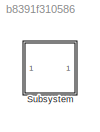
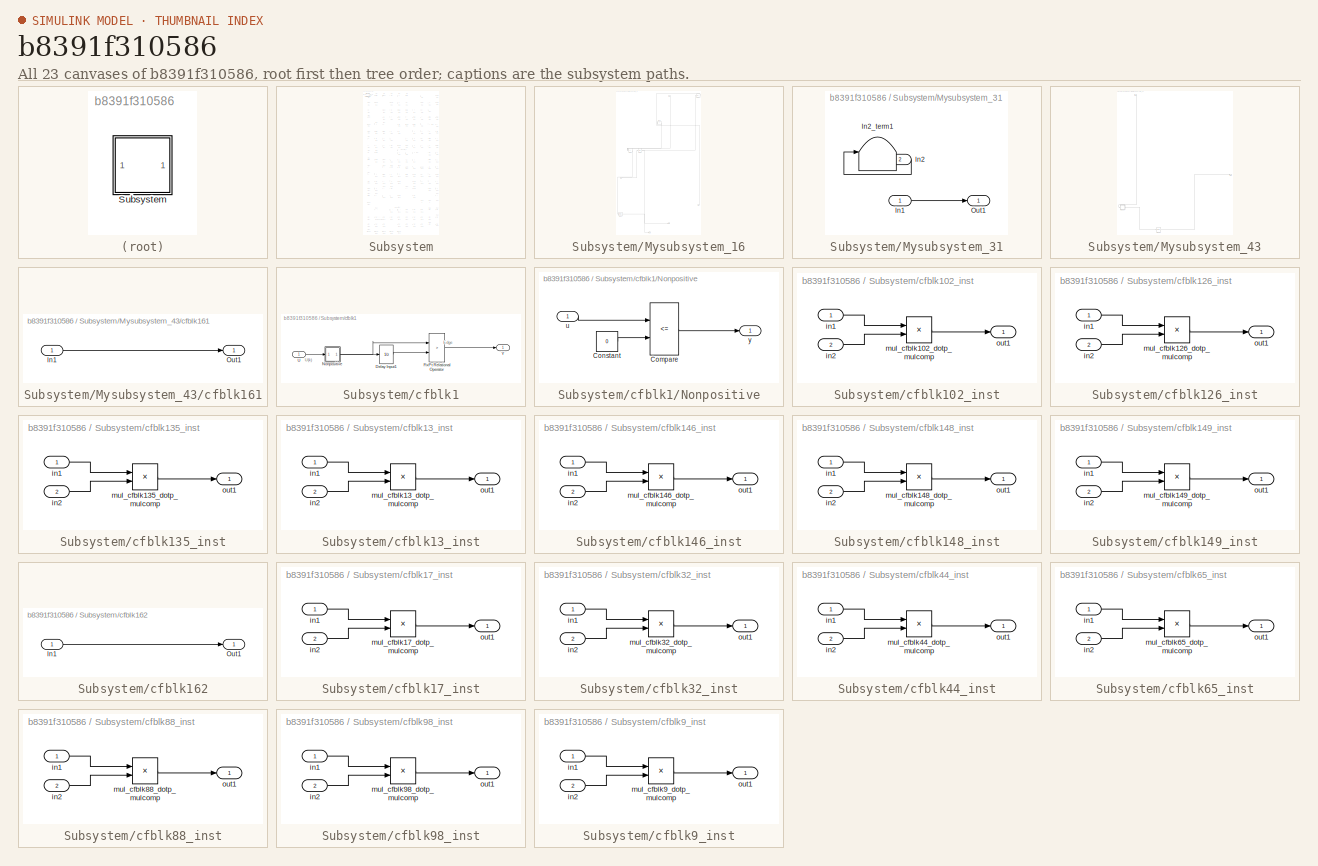
[diagram: thumbnail index - all 23 canvases of the model, root first then tree order]
MODEL slx_b8391f310586
KIND model
CONFIG AbsTol = auto
CONFIG EnableMultiTasking = off
CONFIG FixedStep = auto
CONFIG MaxStep = auto
CONFIG MinStep = auto
CONFIG RelTol = 1e-3
CONFIG SampleTimeConstraint = Unconstrained
CONFIG SolverName = VariableStepAuto
CONFIG StartTime = 0.0
CONFIG StopTime = 10.0
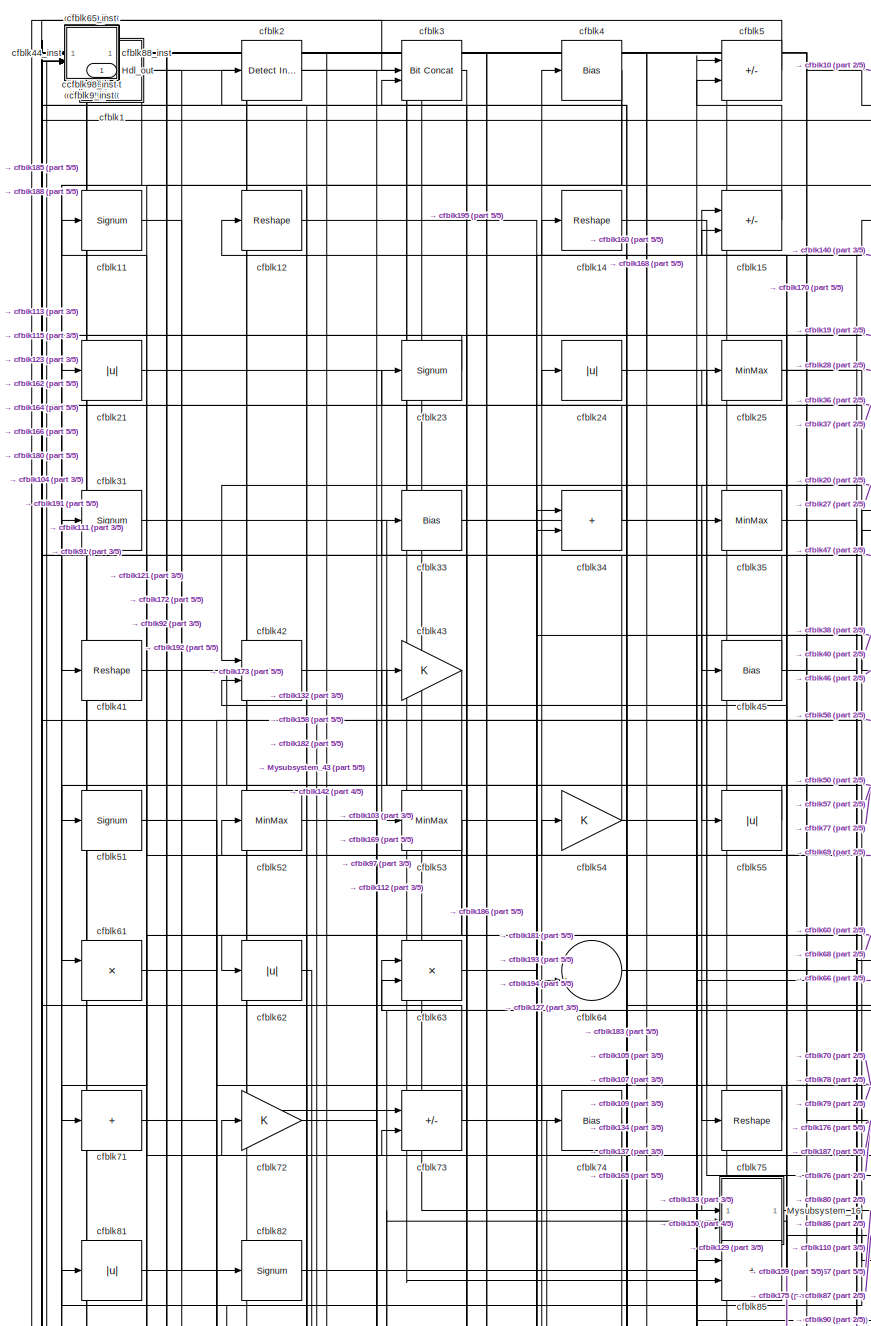
[diagram: Subsystem - part 1/5, top left region]
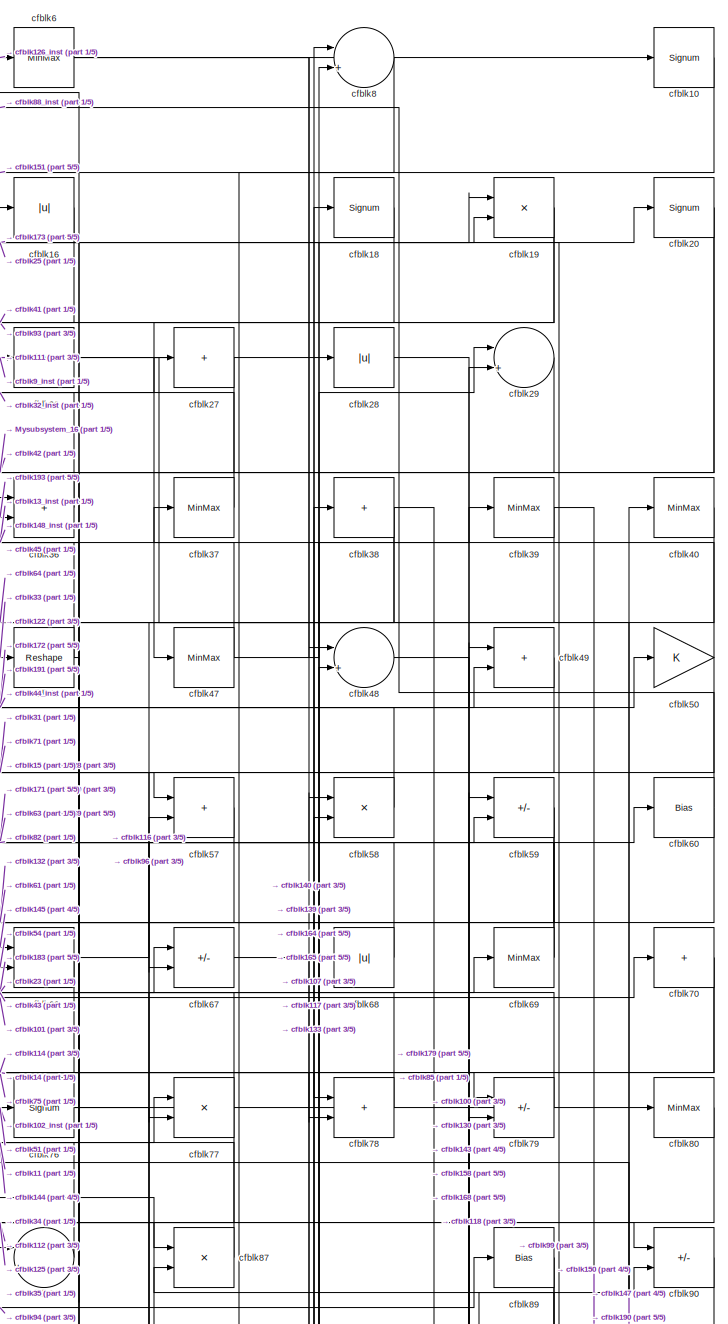
[diagram: Subsystem - part 2/5, top right region]
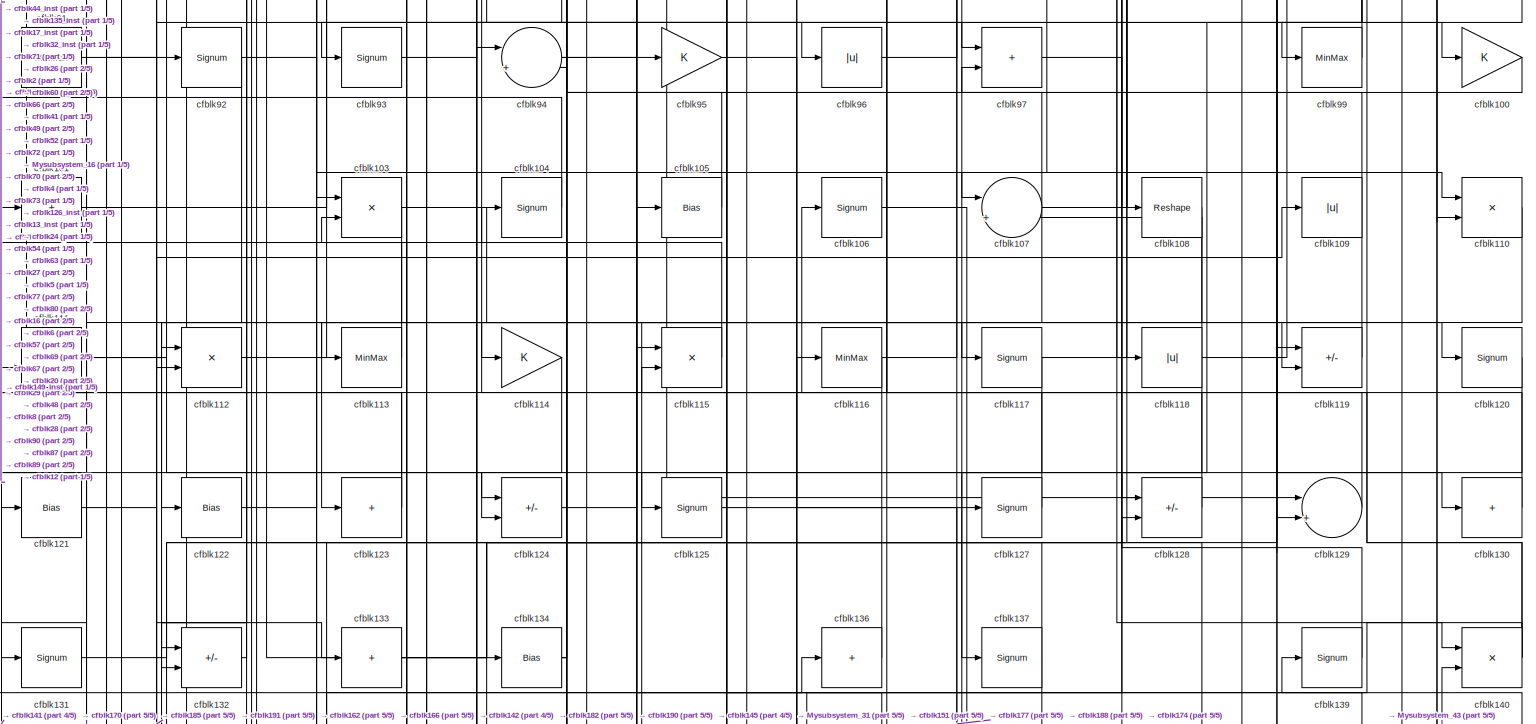
[diagram: Subsystem - part 3/5, full width, middle band]
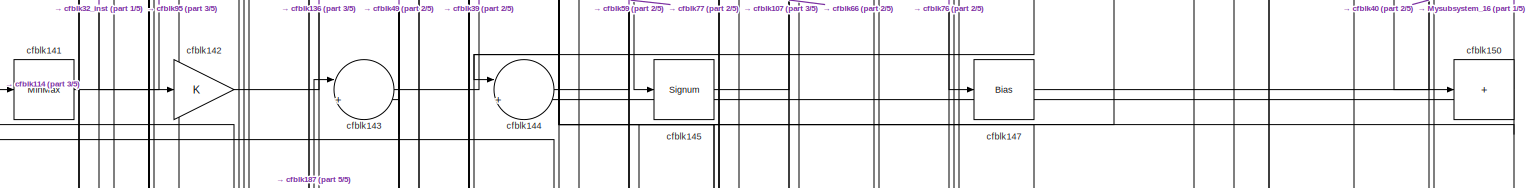
[diagram: Subsystem - part 4/5, full width, bottom band]
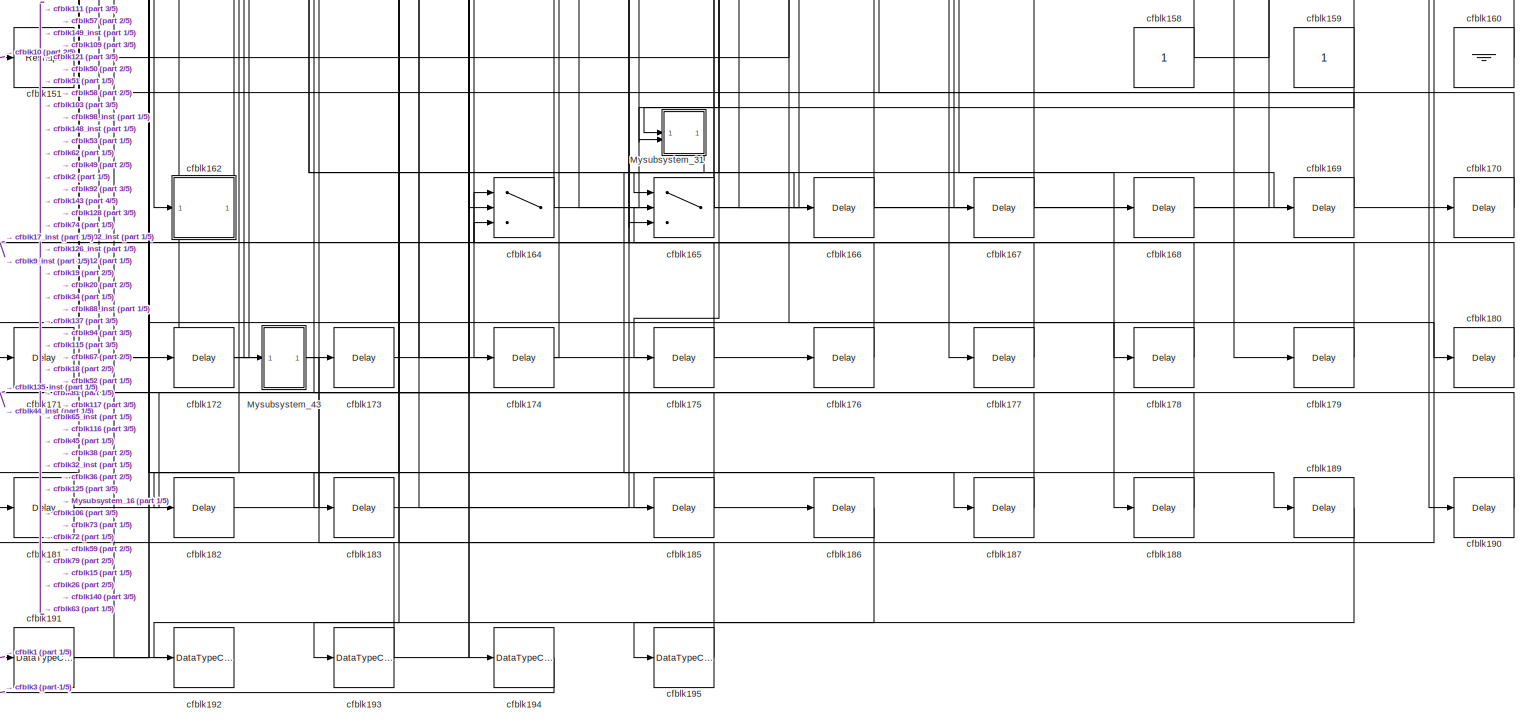
[diagram: Subsystem - part 5/5, full width, bottom band]
BLOCK [SubSystem] Subsystem
BLOCK [Outport] Subsystem/Hdl_out
  OutDataTypeStr = uint8
  SampleTime = 1
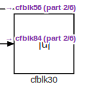
[diagram: Subsystem/Mysubsystem_16 - part 1/6, top right region]
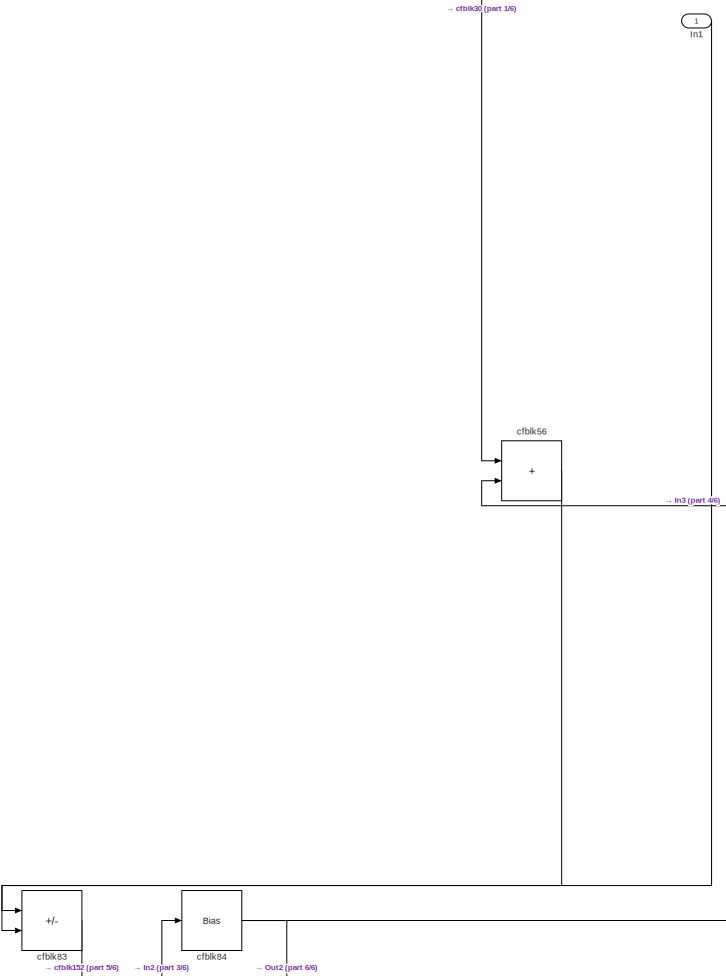
[diagram: Subsystem/Mysubsystem_16 - part 2/6, top center region]
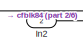
[diagram: Subsystem/Mysubsystem_16 - part 3/6, middle left region]
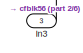
[diagram: Subsystem/Mysubsystem_16 - part 4/6, bottom right region]
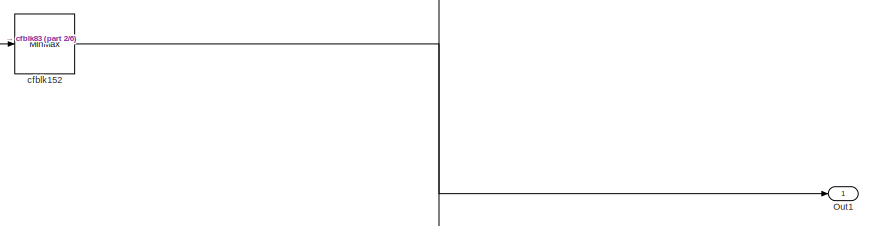
[diagram: Subsystem/Mysubsystem_16 - part 5/6, bottom left region]
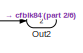
[diagram: Subsystem/Mysubsystem_16 - part 6/6, bottom center region]
BLOCK [SubSystem] Subsystem/Mysubsystem_16
BLOCK [Inport] Subsystem/Mysubsystem_16/In1
  OutDataTypeStr = uint8
  PortDimensions = 1
  SampleTime = 1
BLOCK [Inport] Subsystem/Mysubsystem_16/In2
  OutDataTypeStr = uint8
  Port = 2
  PortDimensions = 1
  SampleTime = 1
BLOCK [Inport] Subsystem/Mysubsystem_16/In3
  OutDataTypeStr = uint8
  Port = 3
  PortDimensions = 1
  SampleTime = 1
BLOCK [Outport] Subsystem/Mysubsystem_16/Out1
  SampleTime = 1
BLOCK [Outport] Subsystem/Mysubsystem_16/Out2
  Port = 2
  SampleTime = 1
BLOCK [MinMax] Subsystem/Mysubsystem_16/cfblk152
BLOCK [Abs] Subsystem/Mysubsystem_16/cfblk30
  SaturateOnIntegerOverflow = off
BLOCK [Sum] Subsystem/Mysubsystem_16/cfblk56
  IconShape = rectangular
BLOCK [Sum] Subsystem/Mysubsystem_16/cfblk83
  IconShape = rectangular
  Inputs = +-
BLOCK [Bias] Subsystem/Mysubsystem_16/cfblk84
  Bias = 0.0
  SaturateOnIntegerOverflow = off
BLOCK [SubSystem] Subsystem/Mysubsystem_31
BLOCK [Inport] Subsystem/Mysubsystem_31/In1
  OutDataTypeStr = uint8
  PortDimensions = 1
  SampleTime = 1
BLOCK [Inport] Subsystem/Mysubsystem_31/In2
  OutDataTypeStr = uint8
  Port = 2
  PortDimensions = 1
  SampleTime = 1
BLOCK [Terminator] Subsystem/Mysubsystem_31/In2_term1
BLOCK [Outport] Subsystem/Mysubsystem_31/Out1
  SampleTime = 1
BLOCK [SubSystem] Subsystem/Mysubsystem_43
BLOCK [Inport] Subsystem/Mysubsystem_43/In1
  OutDataTypeStr = uint8
  PortDimensions = 1
  SampleTime = 1
BLOCK [Outport] Subsystem/Mysubsystem_43/Out1
  SampleTime = 1
BLOCK [SubSystem] Subsystem/Mysubsystem_43/cfblk161
BLOCK [Inport] Subsystem/Mysubsystem_43/cfblk161/In1
  OutDataTypeStr = uint8
  PortDimensions = 1
  SampleTime = 1
BLOCK [Outport] Subsystem/Mysubsystem_43/cfblk161/Out1
  SampleTime = 1
BLOCK [Delay] Subsystem/Mysubsystem_43/cfblk184
  InputPortMap = u0
  SampleTime = 1
BLOCK [SubSystem] Subsystem/cfblk1
BLOCK [UnitDelay] Subsystem/cfblk1/Delay Input1
  Description = Store in Global RAM
  DisableCoverage = on
  HasFrameUpgradeWarning = on
  InitialCondition = vinit
  SampleTime = -1
BLOCK [RelationalOperator] Subsystem/cfblk1/FixPt Relational Operator
  InputSameDT = off
  Operator = >
  OutDataTypeStr = fixdt(0, 8)
  ZeroCross = off
BLOCK [SubSystem] Subsystem/cfblk1/Nonpositive
BLOCK [RelationalOperator] Subsystem/cfblk1/Nonpositive/Compare
  Operator = <=
  OutDataTypeStr = boolean
  ZeroCross = off
BLOCK [Constant] Subsystem/cfblk1/Nonpositive/Constant
  DisableCoverage = on
  OutDataTypeStr = Inherit: Inherit via back propagation
  PreserveConstantTs = on
  SampleTime = -1
  Value = 0
BLOCK [Inport] Subsystem/cfblk1/Nonpositive/u
  OutDataTypeStr = uint8
  SampleTime = 1
BLOCK [Outport] Subsystem/cfblk1/Nonpositive/y
  SampleTime = 1
BLOCK [Inport] Subsystem/cfblk1/U
  OutDataTypeStr = uint8
  SampleTime = 1
BLOCK [Outport] Subsystem/cfblk1/Y
  SampleTime = 1
BLOCK [Signum] Subsystem/cfblk10
BLOCK [Gain] Subsystem/cfblk100
  OutDataTypeStr = uint8
BLOCK [Sum] Subsystem/cfblk101
  IconShape = rectangular
  Inputs = +
  OutDataTypeStr = uint8
BLOCK [SubSystem] Subsystem/cfblk102_inst
BLOCK [Inport] Subsystem/cfblk102_inst/in1
  OutDataTypeStr = uint8
  SampleTime = 1
BLOCK [Inport] Subsystem/cfblk102_inst/in2
  OutDataTypeStr = uint8
  Port = 2
  SampleTime = 1
BLOCK [Product] Subsystem/cfblk102_inst/mul_cfblk102_dotp_mulcomp
  Inputs = **
  OutDataTypeStr = uint8
  SampleTime = 1
BLOCK [Outport] Subsystem/cfblk102_inst/out1
  OutDataTypeStr = uint8
  SampleTime = 1
BLOCK [Product] Subsystem/cfblk103
  Inputs = */
  OutDataTypeStr = uint8
  RndMeth = Zero
  SaturateOnIntegerOverflow = on
BLOCK [Signum] Subsystem/cfblk104
BLOCK [Bias] Subsystem/cfblk105
  Bias = 0.0
  SaturateOnIntegerOverflow = off
BLOCK [Signum] Subsystem/cfblk106
BLOCK [Sum] Subsystem/cfblk107
  Inputs = |++
  OutDataTypeStr = uint8
BLOCK [Reshape] Subsystem/cfblk108
BLOCK [Abs] Subsystem/cfblk109
  OutDataTypeStr = uint8
  SaturateOnIntegerOverflow = off
BLOCK [Signum] Subsystem/cfblk11
BLOCK [Product] Subsystem/cfblk110
  Inputs = */
  OutDataTypeStr = uint8
  RndMeth = Zero
  SaturateOnIntegerOverflow = on
BLOCK [Sum] Subsystem/cfblk111
  IconShape = rectangular
  OutDataTypeStr = uint8
BLOCK [Product] Subsystem/cfblk112
  Inputs = */
  OutDataTypeStr = uint8
  RndMeth = Zero
  SaturateOnIntegerOverflow = on
BLOCK [MinMax] Subsystem/cfblk113
  OutDataTypeStr = uint8
BLOCK [Gain] Subsystem/cfblk114
  OutDataTypeStr = uint8
BLOCK [Product] Subsystem/cfblk115
  Inputs = */
  OutDataTypeStr = uint8
  RndMeth = Zero
  SaturateOnIntegerOverflow = on
BLOCK [MinMax] Subsystem/cfblk116
  OutDataTypeStr = uint8
BLOCK [Signum] Subsystem/cfblk117
BLOCK [Abs] Subsystem/cfblk118
  OutDataTypeStr = uint8
  SaturateOnIntegerOverflow = off
BLOCK [Sum] Subsystem/cfblk119
  IconShape = rectangular
  Inputs = +-
  OutDataTypeStr = uint8
BLOCK [Reshape] Subsystem/cfblk12
BLOCK [Signum] Subsystem/cfblk120
BLOCK [Bias] Subsystem/cfblk121
  Bias = 0.0
  SaturateOnIntegerOverflow = off
BLOCK [Bias] Subsystem/cfblk122
  Bias = 0.0
  SaturateOnIntegerOverflow = off
BLOCK [Sum] Subsystem/cfblk123
  IconShape = rectangular
  Inputs = +
  OutDataTypeStr = uint8
BLOCK [Sum] Subsystem/cfblk124
  IconShape = rectangular
  Inputs = +-
  OutDataTypeStr = uint8
BLOCK [Signum] Subsystem/cfblk125
BLOCK [SubSystem] Subsystem/cfblk126_inst
BLOCK [Inport] Subsystem/cfblk126_inst/in1
  OutDataTypeStr = uint8
  SampleTime = 1
BLOCK [Inport] Subsystem/cfblk126_inst/in2
  OutDataTypeStr = uint8
  Port = 2
  SampleTime = 1
BLOCK [Product] Subsystem/cfblk126_inst/mul_cfblk126_dotp_mulcomp
  Inputs = **
  OutDataTypeStr = uint8
  SampleTime = 1
BLOCK [Outport] Subsystem/cfblk126_inst/out1
  OutDataTypeStr = uint8
  SampleTime = 1
BLOCK [Signum] Subsystem/cfblk127
BLOCK [Sum] Subsystem/cfblk128
  IconShape = rectangular
  Inputs = +-
  OutDataTypeStr = uint8
BLOCK [Sum] Subsystem/cfblk129
  Inputs = |++
  OutDataTypeStr = uint8
BLOCK [Sum] Subsystem/cfblk130
  IconShape = rectangular
  Inputs = +
  OutDataTypeStr = uint8
BLOCK [Signum] Subsystem/cfblk131
BLOCK [Sum] Subsystem/cfblk132
  IconShape = rectangular
  Inputs = +-
  OutDataTypeStr = uint8
BLOCK [Sum] Subsystem/cfblk133
  IconShape = rectangular
  Inputs = +
  OutDataTypeStr = uint8
BLOCK [Bias] Subsystem/cfblk134
  Bias = 0.0
  SaturateOnIntegerOverflow = off
BLOCK [SubSystem] Subsystem/cfblk135_inst
BLOCK [Inport] Subsystem/cfblk135_inst/in1
  OutDataTypeStr = uint8
  SampleTime = 1
BLOCK [Inport] Subsystem/cfblk135_inst/in2
  OutDataTypeStr = uint8
  Port = 2
  SampleTime = 1
BLOCK [Product] Subsystem/cfblk135_inst/mul_cfblk135_dotp_mulcomp
  Inputs = **
  OutDataTypeStr = uint8
  SampleTime = 1
BLOCK [Outport] Subsystem/cfblk135_inst/out1
  OutDataTypeStr = uint8
  SampleTime = 1
BLOCK [Sum] Subsystem/cfblk136
  IconShape = rectangular
  Inputs = +
  OutDataTypeStr = uint8
BLOCK [Signum] Subsystem/cfblk137
BLOCK [Signum] Subsystem/cfblk139
BLOCK [SubSystem] Subsystem/cfblk13_inst
BLOCK [Inport] Subsystem/cfblk13_inst/in1
  OutDataTypeStr = uint8
  SampleTime = 1
BLOCK [Inport] Subsystem/cfblk13_inst/in2
  OutDataTypeStr = uint8
  Port = 2
  SampleTime = 1
BLOCK [Product] Subsystem/cfblk13_inst/mul_cfblk13_dotp_mulcomp
  Inputs = **
  OutDataTypeStr = uint8
  SampleTime = 1
BLOCK [Outport] Subsystem/cfblk13_inst/out1
  OutDataTypeStr = uint8
  SampleTime = 1
BLOCK [Reshape] Subsystem/cfblk14
BLOCK [Product] Subsystem/cfblk140
  Inputs = */
  OutDataTypeStr = uint8
  RndMeth = Zero
  SaturateOnIntegerOverflow = on
BLOCK [MinMax] Subsystem/cfblk141
  OutDataTypeStr = uint8
BLOCK [Gain] Subsystem/cfblk142
  OutDataTypeStr = uint8
BLOCK [Sum] Subsystem/cfblk143
  Inputs = |++
  OutDataTypeStr = uint8
BLOCK [Sum] Subsystem/cfblk144
  Inputs = |++
  OutDataTypeStr = uint8
BLOCK [Signum] Subsystem/cfblk145
BLOCK [SubSystem] Subsystem/cfblk146_inst
BLOCK [Inport] Subsystem/cfblk146_inst/in1
  OutDataTypeStr = uint8
  SampleTime = 1
BLOCK [Inport] Subsystem/cfblk146_inst/in2
  OutDataTypeStr = uint8
  Port = 2
  SampleTime = 1
BLOCK [Product] Subsystem/cfblk146_inst/mul_cfblk146_dotp_mulcomp
  Inputs = **
  OutDataTypeStr = uint8
  SampleTime = 1
BLOCK [Outport] Subsystem/cfblk146_inst/out1
  OutDataTypeStr = uint8
  SampleTime = 1
BLOCK [Bias] Subsystem/cfblk147
  Bias = 0.0
  SaturateOnIntegerOverflow = off
BLOCK [SubSystem] Subsystem/cfblk148_inst
BLOCK [Inport] Subsystem/cfblk148_inst/in1
  OutDataTypeStr = uint8
  SampleTime = 1
BLOCK [Inport] Subsystem/cfblk148_inst/in2
  OutDataTypeStr = uint8
  Port = 2
  SampleTime = 1
BLOCK [Product] Subsystem/cfblk148_inst/mul_cfblk148_dotp_mulcomp
  Inputs = **
  OutDataTypeStr = uint8
  SampleTime = 1
BLOCK [Outport] Subsystem/cfblk148_inst/out1
  OutDataTypeStr = uint8
  SampleTime = 1
BLOCK [SubSystem] Subsystem/cfblk149_inst
BLOCK [Inport] Subsystem/cfblk149_inst/in1
  OutDataTypeStr = uint8
  SampleTime = 1
BLOCK [Inport] Subsystem/cfblk149_inst/in2
  OutDataTypeStr = uint8
  Port = 2
  SampleTime = 1
BLOCK [Product] Subsystem/cfblk149_inst/mul_cfblk149_dotp_mulcomp
  Inputs = **
  OutDataTypeStr = uint8
  SampleTime = 1
BLOCK [Outport] Subsystem/cfblk149_inst/out1
  OutDataTypeStr = uint8
  SampleTime = 1
BLOCK [Sum] Subsystem/cfblk15
  IconShape = rectangular
  Inputs = +-
  OutDataTypeStr = uint8
BLOCK [Sum] Subsystem/cfblk150
  IconShape = rectangular
  Inputs = +
  OutDataTypeStr = uint8
BLOCK [Reshape] Subsystem/cfblk151
BLOCK [Constant] Subsystem/cfblk158
  OutDataTypeStr = uint8
  SampleTime = -1
BLOCK [Constant] Subsystem/cfblk159
  OutDataTypeStr = uint8
  SampleTime = -1
BLOCK [Abs] Subsystem/cfblk16
  OutDataTypeStr = uint8
  SaturateOnIntegerOverflow = off
BLOCK [Ground] Subsystem/cfblk160
BLOCK [SubSystem] Subsystem/cfblk162
BLOCK [Inport] Subsystem/cfblk162/In1
  OutDataTypeStr = uint8
  PortDimensions = 1
  SampleTime = 1
BLOCK [Outport] Subsystem/cfblk162/Out1
  SampleTime = 1
BLOCK [Switch] Subsystem/cfblk164
  InputSameDT = off
  OutDataTypeStr = uint8
  SaturateOnIntegerOverflow = off
BLOCK [Switch] Subsystem/cfblk165
  InputSameDT = off
  OutDataTypeStr = uint8
  SaturateOnIntegerOverflow = off
BLOCK [Delay] Subsystem/cfblk166
  InputPortMap = u0
  SampleTime = 1
BLOCK [Delay] Subsystem/cfblk167
  InputPortMap = u0
  SampleTime = 1
BLOCK [Delay] Subsystem/cfblk168
  InputPortMap = u0
  SampleTime = 1
BLOCK [Delay] Subsystem/cfblk169
  InputPortMap = u0
  SampleTime = 1
BLOCK [Delay] Subsystem/cfblk170
  InputPortMap = u0
  SampleTime = 1
BLOCK [Delay] Subsystem/cfblk171
  InputPortMap = u0
  SampleTime = 1
BLOCK [Delay] Subsystem/cfblk172
  InputPortMap = u0
  SampleTime = 1
BLOCK [Delay] Subsystem/cfblk173
  InputPortMap = u0
  SampleTime = 1
BLOCK [Delay] Subsystem/cfblk174
  InputPortMap = u0
  SampleTime = 1
BLOCK [Delay] Subsystem/cfblk175
  InputPortMap = u0
  SampleTime = 1
BLOCK [Delay] Subsystem/cfblk176
  InputPortMap = u0
  SampleTime = 1
BLOCK [Delay] Subsystem/cfblk177
  InputPortMap = u0
  SampleTime = 1
BLOCK [Delay] Subsystem/cfblk178
  InputPortMap = u0
  SampleTime = 1
BLOCK [Delay] Subsystem/cfblk179
  InputPortMap = u0
  SampleTime = 1
BLOCK [SubSystem] Subsystem/cfblk17_inst
BLOCK [Inport] Subsystem/cfblk17_inst/in1
  OutDataTypeStr = uint8
  SampleTime = 1
BLOCK [Inport] Subsystem/cfblk17_inst/in2
  OutDataTypeStr = uint8
  Port = 2
  SampleTime = 1
BLOCK [Product] Subsystem/cfblk17_inst/mul_cfblk17_dotp_mulcomp
  Inputs = **
  OutDataTypeStr = uint8
  SampleTime = 1
BLOCK [Outport] Subsystem/cfblk17_inst/out1
  OutDataTypeStr = uint8
  SampleTime = 1
BLOCK [Signum] Subsystem/cfblk18
BLOCK [Delay] Subsystem/cfblk180
  InputPortMap = u0
  SampleTime = 1
BLOCK [Delay] Subsystem/cfblk181
  InputPortMap = u0
  SampleTime = 1
BLOCK [Delay] Subsystem/cfblk182
  InputPortMap = u0
  SampleTime = 1
BLOCK [Delay] Subsystem/cfblk183
  InputPortMap = u0
  SampleTime = 1
BLOCK [Delay] Subsystem/cfblk185
  InputPortMap = u0
  SampleTime = 1
BLOCK [Delay] Subsystem/cfblk186
  InputPortMap = u0
  SampleTime = 1
BLOCK [Delay] Subsystem/cfblk187
  InputPortMap = u0
  SampleTime = 1
BLOCK [Delay] Subsystem/cfblk188
  InputPortMap = u0
  SampleTime = 1
BLOCK [Delay] Subsystem/cfblk189
  InputPortMap = u0
  SampleTime = 1
BLOCK [Product] Subsystem/cfblk19
  Inputs = */
  OutDataTypeStr = uint8
  RndMeth = Zero
  SaturateOnIntegerOverflow = on
BLOCK [Delay] Subsystem/cfblk190
  InputPortMap = u0
  SampleTime = 1
BLOCK [DataTypeConversion] Subsystem/cfblk191
  OutDataTypeStr = uint8
  RndMeth = Floor
  SaturateOnIntegerOverflow = off
BLOCK [DataTypeConversion] Subsystem/cfblk192
  OutDataTypeStr = uint8
  RndMeth = Floor
  SaturateOnIntegerOverflow = off
BLOCK [DataTypeConversion] Subsystem/cfblk193
  OutDataTypeStr = uint8
  RndMeth = Floor
  SaturateOnIntegerOverflow = off
BLOCK [DataTypeConversion] Subsystem/cfblk194
  OutDataTypeStr = uint8
  RndMeth = Floor
  SaturateOnIntegerOverflow = off
BLOCK [DataTypeConversion] Subsystem/cfblk195
  OutDataTypeStr = uint8
  RndMeth = Floor
  SaturateOnIntegerOverflow = off
BLOCK [Reference] Subsystem/cfblk2  REF=simulink/Logic and Bit
Operations/Detect
Increase
  LibrarySourceBlock = hdlsllib/Logic and Bit\nOperations/Detect\nIncrease
  SourceBlock = simulink/Logic and Bit\nOperations/Detect\nIncrease
  SourceType = Detect Increase
BLOCK [Signum] Subsystem/cfblk20
BLOCK [Abs] Subsystem/cfblk21
  OutDataTypeStr = uint8
  SaturateOnIntegerOverflow = off
BLOCK [Signum] Subsystem/cfblk23
BLOCK [Abs] Subsystem/cfblk24
  OutDataTypeStr = uint8
  SaturateOnIntegerOverflow = off
BLOCK [MinMax] Subsystem/cfblk25
  OutDataTypeStr = uint8
BLOCK [MinMax] Subsystem/cfblk26
  OutDataTypeStr = uint8
BLOCK [Sum] Subsystem/cfblk27
  IconShape = rectangular
  Inputs = +
  OutDataTypeStr = uint8
BLOCK [Abs] Subsystem/cfblk28
  OutDataTypeStr = uint8
  SaturateOnIntegerOverflow = off
BLOCK [Sum] Subsystem/cfblk29
  Inputs = |++
  OutDataTypeStr = uint8
BLOCK [Reference] Subsystem/cfblk3  REF=hdlsllib/Logic and Bit
Operations/Bit Concat
  SourceBlock = hdlsllib/Logic and Bit\nOperations/Bit Concat
  SourceType = Bit Concat
BLOCK [Signum] Subsystem/cfblk31
BLOCK [SubSystem] Subsystem/cfblk32_inst
BLOCK [Inport] Subsystem/cfblk32_inst/in1
  OutDataTypeStr = uint8
  SampleTime = 1
BLOCK [Inport] Subsystem/cfblk32_inst/in2
  OutDataTypeStr = uint8
  Port = 2
  SampleTime = 1
BLOCK [Product] Subsystem/cfblk32_inst/mul_cfblk32_dotp_mulcomp
  Inputs = **
  OutDataTypeStr = uint8
  SampleTime = 1
BLOCK [Outport] Subsystem/cfblk32_inst/out1
  OutDataTypeStr = uint8
  SampleTime = 1
BLOCK [Bias] Subsystem/cfblk33
  Bias = 0.0
  SaturateOnIntegerOverflow = off
BLOCK [Sum] Subsystem/cfblk34
  IconShape = rectangular
  OutDataTypeStr = uint8
BLOCK [MinMax] Subsystem/cfblk35
  OutDataTypeStr = uint8
BLOCK [Sum] Subsystem/cfblk36
  IconShape = rectangular
  OutDataTypeStr = uint8
BLOCK [MinMax] Subsystem/cfblk37
  OutDataTypeStr = uint8
BLOCK [Sum] Subsystem/cfblk38
  IconShape = rectangular
  Inputs = +
  OutDataTypeStr = uint8
BLOCK [MinMax] Subsystem/cfblk39
  OutDataTypeStr = uint8
BLOCK [Bias] Subsystem/cfblk4
  Bias = 0.0
  SaturateOnIntegerOverflow = off
BLOCK [MinMax] Subsystem/cfblk40
  OutDataTypeStr = uint8
BLOCK [Reshape] Subsystem/cfblk41
BLOCK [Product] Subsystem/cfblk42
  Inputs = */
  OutDataTypeStr = uint8
  RndMeth = Zero
  SaturateOnIntegerOverflow = on
BLOCK [Gain] Subsystem/cfblk43
  OutDataTypeStr = uint8
BLOCK [SubSystem] Subsystem/cfblk44_inst
BLOCK [Inport] Subsystem/cfblk44_inst/in1
  OutDataTypeStr = uint8
  SampleTime = 1
BLOCK [Inport] Subsystem/cfblk44_inst/in2
  OutDataTypeStr = uint8
  Port = 2
  SampleTime = 1
BLOCK [Product] Subsystem/cfblk44_inst/mul_cfblk44_dotp_mulcomp
  Inputs = **
  OutDataTypeStr = uint8
  SampleTime = 1
BLOCK [Outport] Subsystem/cfblk44_inst/out1
  OutDataTypeStr = uint8
  SampleTime = 1
BLOCK [Bias] Subsystem/cfblk45
  Bias = 0.0
  SaturateOnIntegerOverflow = off
BLOCK [Reshape] Subsystem/cfblk46
BLOCK [MinMax] Subsystem/cfblk47
  OutDataTypeStr = uint8
BLOCK [Sum] Subsystem/cfblk48
  Inputs = |++
  OutDataTypeStr = uint8
BLOCK [Sum] Subsystem/cfblk49
  IconShape = rectangular
  OutDataTypeStr = uint8
BLOCK [Sum] Subsystem/cfblk5
  IconShape = rectangular
  Inputs = +-
  OutDataTypeStr = uint8
BLOCK [Gain] Subsystem/cfblk50
  OutDataTypeStr = uint8
BLOCK [Signum] Subsystem/cfblk51
BLOCK [MinMax] Subsystem/cfblk52
  OutDataTypeStr = uint8
BLOCK [MinMax] Subsystem/cfblk53
  OutDataTypeStr = uint8
BLOCK [Gain] Subsystem/cfblk54
  OutDataTypeStr = uint8
BLOCK [Abs] Subsystem/cfblk55
  OutDataTypeStr = uint8
  SaturateOnIntegerOverflow = off
BLOCK [Sum] Subsystem/cfblk57
  IconShape = rectangular
  OutDataTypeStr = uint8
BLOCK [Product] Subsystem/cfblk58
  Inputs = */
  OutDataTypeStr = uint8
  RndMeth = Zero
  SaturateOnIntegerOverflow = on
BLOCK [Sum] Subsystem/cfblk59
  IconShape = rectangular
  Inputs = +-
  OutDataTypeStr = uint8
BLOCK [MinMax] Subsystem/cfblk6
  OutDataTypeStr = uint8
BLOCK [Bias] Subsystem/cfblk60
  Bias = 0.0
  SaturateOnIntegerOverflow = off
BLOCK [Product] Subsystem/cfblk61
  Inputs = */
  OutDataTypeStr = uint8
  RndMeth = Zero
  SaturateOnIntegerOverflow = on
BLOCK [Abs] Subsystem/cfblk62
  OutDataTypeStr = uint8
  SaturateOnIntegerOverflow = off
BLOCK [Product] Subsystem/cfblk63
  Inputs = */
  OutDataTypeStr = uint8
  RndMeth = Zero
  SaturateOnIntegerOverflow = on
BLOCK [Sum] Subsystem/cfblk64
  Inputs = |++
  OutDataTypeStr = uint8
BLOCK [SubSystem] Subsystem/cfblk65_inst
BLOCK [Inport] Subsystem/cfblk65_inst/in1
  OutDataTypeStr = uint8
  SampleTime = 1
BLOCK [Inport] Subsystem/cfblk65_inst/in2
  OutDataTypeStr = uint8
  Port = 2
  SampleTime = 1
BLOCK [Product] Subsystem/cfblk65_inst/mul_cfblk65_dotp_mulcomp
  Inputs = **
  OutDataTypeStr = uint8
  SampleTime = 1
BLOCK [Outport] Subsystem/cfblk65_inst/out1
  OutDataTypeStr = uint8
  SampleTime = 1
BLOCK [Sum] Subsystem/cfblk66
  IconShape = rectangular
  OutDataTypeStr = uint8
BLOCK [Sum] Subsystem/cfblk67
  IconShape = rectangular
  Inputs = +-
  OutDataTypeStr = uint8
BLOCK [Abs] Subsystem/cfblk68
  OutDataTypeStr = uint8
  SaturateOnIntegerOverflow = off
BLOCK [MinMax] Subsystem/cfblk69
  OutDataTypeStr = uint8
BLOCK [Sum] Subsystem/cfblk70
  IconShape = rectangular
  Inputs = +
  OutDataTypeStr = uint8
BLOCK [Sum] Subsystem/cfblk71
  IconShape = rectangular
  Inputs = +
  OutDataTypeStr = uint8
BLOCK [Gain] Subsystem/cfblk72
  OutDataTypeStr = uint8
BLOCK [Sum] Subsystem/cfblk73
  IconShape = rectangular
  Inputs = +-
  OutDataTypeStr = uint8
BLOCK [Bias] Subsystem/cfblk74
  Bias = 0.0
  SaturateOnIntegerOverflow = off
BLOCK [Reshape] Subsystem/cfblk75
BLOCK [Signum] Subsystem/cfblk76
BLOCK [Product] Subsystem/cfblk77
  Inputs = */
  OutDataTypeStr = uint8
  RndMeth = Zero
  SaturateOnIntegerOverflow = on
BLOCK [Sum] Subsystem/cfblk78
  IconShape = rectangular
  OutDataTypeStr = uint8
BLOCK [Sum] Subsystem/cfblk79
  IconShape = rectangular
  Inputs = +-
  OutDataTypeStr = uint8
BLOCK [Sum] Subsystem/cfblk8
  Inputs = |++
  OutDataTypeStr = uint8
BLOCK [MinMax] Subsystem/cfblk80
  OutDataTypeStr = uint8
BLOCK [Abs] Subsystem/cfblk81
  OutDataTypeStr = uint8
  SaturateOnIntegerOverflow = off
BLOCK [Signum] Subsystem/cfblk82
BLOCK [Sum] Subsystem/cfblk85
  IconShape = rectangular
  OutDataTypeStr = uint8
BLOCK [Sum] Subsystem/cfblk86
  Inputs = |++
  OutDataTypeStr = uint8
BLOCK [Product] Subsystem/cfblk87
  Inputs = */
  OutDataTypeStr = uint8
  RndMeth = Zero
  SaturateOnIntegerOverflow = on
BLOCK [SubSystem] Subsystem/cfblk88_inst
BLOCK [Inport] Subsystem/cfblk88_inst/in1
  OutDataTypeStr = uint8
  SampleTime = 1
BLOCK [Inport] Subsystem/cfblk88_inst/in2
  OutDataTypeStr = uint8
  Port = 2
  SampleTime = 1
BLOCK [Product] Subsystem/cfblk88_inst/mul_cfblk88_dotp_mulcomp
  Inputs = **
  OutDataTypeStr = uint8
  SampleTime = 1
BLOCK [Outport] Subsystem/cfblk88_inst/out1
  OutDataTypeStr = uint8
  SampleTime = 1
BLOCK [Bias] Subsystem/cfblk89
  Bias = 0.0
  SaturateOnIntegerOverflow = off
BLOCK [Sum] Subsystem/cfblk90
  IconShape = rectangular
  Inputs = +-
  OutDataTypeStr = uint8
BLOCK [MinMax] Subsystem/cfblk91
  OutDataTypeStr = uint8
BLOCK [Signum] Subsystem/cfblk92
BLOCK [Signum] Subsystem/cfblk93
BLOCK [Sum] Subsystem/cfblk94
  Inputs = |++
  OutDataTypeStr = uint8
BLOCK [Gain] Subsystem/cfblk95
  OutDataTypeStr = uint8
BLOCK [Abs] Subsystem/cfblk96
  OutDataTypeStr = uint8
  SaturateOnIntegerOverflow = off
BLOCK [Sum] Subsystem/cfblk97
  IconShape = rectangular
  OutDataTypeStr = uint8
BLOCK [SubSystem] Subsystem/cfblk98_inst
BLOCK [Inport] Subsystem/cfblk98_inst/in1
  OutDataTypeStr = uint8
  SampleTime = 1
BLOCK [Inport] Subsystem/cfblk98_inst/in2
  OutDataTypeStr = uint8
  Port = 2
  SampleTime = 1
BLOCK [Product] Subsystem/cfblk98_inst/mul_cfblk98_dotp_mulcomp
  Inputs = **
  OutDataTypeStr = uint8
  SampleTime = 1
BLOCK [Outport] Subsystem/cfblk98_inst/out1
  OutDataTypeStr = uint8
  SampleTime = 1
BLOCK [MinMax] Subsystem/cfblk99
  OutDataTypeStr = uint8
BLOCK [SubSystem] Subsystem/cfblk9_inst
BLOCK [Inport] Subsystem/cfblk9_inst/in1
  OutDataTypeStr = uint8
  SampleTime = 1
BLOCK [Inport] Subsystem/cfblk9_inst/in2
  OutDataTypeStr = uint8
  Port = 2
  SampleTime = 1
BLOCK [Product] Subsystem/cfblk9_inst/mul_cfblk9_dotp_mulcomp
  Inputs = **
  OutDataTypeStr = uint8
  SampleTime = 1
BLOCK [Outport] Subsystem/cfblk9_inst/out1
  OutDataTypeStr = uint8
  SampleTime = 1
ANNOTATION Subsystem/cfblk1: Edge
ANNOTATION Subsystem/cfblk1: U(k)
LINE Subsystem/Mysubsystem_16/In1:1 -> Subsystem/Mysubsystem_16/cfblk83:2
LINE Subsystem/Mysubsystem_16/In2:1 -> Subsystem/Mysubsystem_16/cfblk84:1
LINE Subsystem/Mysubsystem_16/In3:1 -> Subsystem/Mysubsystem_16/cfblk56:2
LINE Subsystem/Mysubsystem_16/cfblk152:1 -> Subsystem/Mysubsystem_16/Out1:1
LINE Subsystem/Mysubsystem_16/cfblk30:1 -> Subsystem/Mysubsystem_16/cfblk56:1
LINE Subsystem/Mysubsystem_16/cfblk56:1 -> Subsystem/Mysubsystem_16/cfblk83:1
LINE Subsystem/Mysubsystem_16/cfblk83:1 -> Subsystem/Mysubsystem_16/cfblk152:1
NET Subsystem/Mysubsystem_16/cfblk84:1 -> Subsystem/Mysubsystem_16/Out2:1, Subsystem/Mysubsystem_16/cfblk30:1
NET Subsystem/Mysubsystem_16:1 -> Subsystem/Hdl_out:1, Subsystem/cfblk167:1
LINE Subsystem/Mysubsystem_16:2 -> Subsystem/cfblk175:1
LINE Subsystem/Mysubsystem_31/In1:1 -> Subsystem/Mysubsystem_31/Out1:1
LINE Subsystem/Mysubsystem_31/In2:1 -> Subsystem/Mysubsystem_31/In2_term1:1
LINE Subsystem/Mysubsystem_31:1 -> Subsystem/cfblk189:1
LINE Subsystem/Mysubsystem_43/In1:1 -> Subsystem/Mysubsystem_43/cfblk161:1
LINE Subsystem/Mysubsystem_43/cfblk161/In1:1 -> Subsystem/Mysubsystem_43/cfblk161/Out1:1
LINE Subsystem/Mysubsystem_43/cfblk161:1 -> Subsystem/Mysubsystem_43/cfblk184:1
LINE Subsystem/Mysubsystem_43/cfblk184:1 -> Subsystem/Mysubsystem_43/Out1:1
LINE Subsystem/Mysubsystem_43:1 -> Subsystem/cfblk140:2
LINE Subsystem/cfblk100:1 -> Subsystem/cfblk97:2
LINE Subsystem/cfblk101:1 -> Subsystem/cfblk70:1
LINE Subsystem/cfblk102_inst/in1:1 -> Subsystem/cfblk102_inst/mul_cfblk102_dotp_mulcomp:1
LINE Subsystem/cfblk102_inst/in2:1 -> Subsystem/cfblk102_inst/mul_cfblk102_dotp_mulcomp:2
LINE Subsystem/cfblk102_inst/mul_cfblk102_dotp_mulcomp:1 -> Subsystem/cfblk102_inst/out1:1
NET Subsystem/cfblk102_inst:1 -> Subsystem/cfblk176:1, Subsystem/cfblk80:1
NET Subsystem/cfblk103:1 -> Subsystem/cfblk120:1, Subsystem/cfblk162:1
LINE Subsystem/cfblk104:1 -> Subsystem/cfblk146_inst:2
LINE Subsystem/cfblk105:1 -> Subsystem/cfblk63:1
LINE Subsystem/cfblk106:1 -> Subsystem/cfblk188:1
NET Subsystem/cfblk107:1 -> Subsystem/cfblk13_inst:1, Subsystem/cfblk145:1, Subsystem/cfblk20:1, Subsystem/cfblk48:2
LINE Subsystem/cfblk108:1 -> Subsystem/cfblk122:1
NET Subsystem/cfblk109:1 -> Subsystem/cfblk119:2, Subsystem/cfblk126_inst:1
LINE Subsystem/cfblk10:1 -> Subsystem/cfblk151:1
LINE Subsystem/cfblk110:1 -> Subsystem/cfblk123:1
NET Subsystem/cfblk111:1 -> Subsystem/cfblk124:2, Subsystem/cfblk26:1
LINE Subsystem/cfblk112:1 -> Subsystem/Mysubsystem_16:2
LINE Subsystem/cfblk113:1 -> Subsystem/cfblk98_inst:1
LINE Subsystem/cfblk114:1 -> Subsystem/cfblk141:1
LINE Subsystem/cfblk115:1 -> Subsystem/cfblk146_inst:1
NET Subsystem/cfblk116:1 -> Subsystem/cfblk115:2, Subsystem/cfblk57:2
NET Subsystem/cfblk117:1 -> Subsystem/Mysubsystem_31:1, Subsystem/cfblk29:1
NET Subsystem/cfblk118:1 -> Subsystem/cfblk107:2, Subsystem/cfblk137:1, Subsystem/cfblk90:2
LINE Subsystem/cfblk119:1 -> Subsystem/cfblk113:1
LINE Subsystem/cfblk11:1 -> Subsystem/cfblk82:1
LINE Subsystem/cfblk120:1 -> Subsystem/cfblk124:1
LINE Subsystem/cfblk121:1 -> Subsystem/cfblk185:1
LINE Subsystem/cfblk122:1 -> Subsystem/cfblk49:2
NET Subsystem/cfblk123:1 -> Subsystem/cfblk149_inst:1, Subsystem/cfblk98_inst:2
LINE Subsystem/cfblk124:1 -> Subsystem/cfblk105:1
LINE Subsystem/cfblk125:1 -> Subsystem/cfblk177:1
LINE Subsystem/cfblk126_inst/in1:1 -> Subsystem/cfblk126_inst/mul_cfblk126_dotp_mulcomp:1
LINE Subsystem/cfblk126_inst/in2:1 -> Subsystem/cfblk126_inst/mul_cfblk126_dotp_mulcomp:2
LINE Subsystem/cfblk126_inst/mul_cfblk126_dotp_mulcomp:1 -> Subsystem/cfblk126_inst/out1:1
NET Subsystem/cfblk126_inst:1 -> Subsystem/cfblk10:1, Subsystem/cfblk149_inst:2, Subsystem/cfblk186:1
LINE Subsystem/cfblk127:1 -> Subsystem/cfblk4:1
LINE Subsystem/cfblk128:1 -> Subsystem/cfblk16:1
LINE Subsystem/cfblk129:1 -> Subsystem/cfblk6:1
LINE Subsystem/cfblk12:1 -> Subsystem/cfblk194:1
LINE Subsystem/cfblk130:1 -> Subsystem/cfblk101:1
LINE Subsystem/cfblk131:1 -> Subsystem/cfblk94:1
LINE Subsystem/cfblk132:1 -> Subsystem/cfblk2:1
NET Subsystem/cfblk133:1 -> Subsystem/cfblk5:2, Subsystem/cfblk8:2
NET Subsystem/cfblk134:1 -> Subsystem/cfblk104:1, Subsystem/cfblk54:1
LINE Subsystem/cfblk135_inst/in1:1 -> Subsystem/cfblk135_inst/mul_cfblk135_dotp_mulcomp:1
LINE Subsystem/cfblk135_inst/in2:1 -> Subsystem/cfblk135_inst/mul_cfblk135_dotp_mulcomp:2
LINE Subsystem/cfblk135_inst/mul_cfblk135_dotp_mulcomp:1 -> Subsystem/cfblk135_inst/out1:1
NET Subsystem/cfblk135_inst:1 -> Subsystem/cfblk111:1, Subsystem/cfblk61:2
LINE Subsystem/cfblk136:1 -> Subsystem/cfblk106:1
NET Subsystem/cfblk137:1 -> Subsystem/cfblk174:1, Subsystem/cfblk24:1
LINE Subsystem/cfblk139:1 -> Subsystem/cfblk8:1
LINE Subsystem/cfblk13_inst/in1:1 -> Subsystem/cfblk13_inst/mul_cfblk13_dotp_mulcomp:1
LINE Subsystem/cfblk13_inst/in2:1 -> Subsystem/cfblk13_inst/mul_cfblk13_dotp_mulcomp:2
LINE Subsystem/cfblk13_inst/mul_cfblk13_dotp_mulcomp:1 -> Subsystem/cfblk13_inst/out1:1
LINE Subsystem/cfblk13_inst:1 -> Subsystem/cfblk65_inst:2
NET Subsystem/cfblk140:1 -> Subsystem/cfblk119:1, Subsystem/cfblk12:1, Subsystem/cfblk139:1
LINE Subsystem/cfblk141:1 -> Subsystem/cfblk95:1
LINE Subsystem/cfblk142:1 -> Subsystem/cfblk136:1
LINE Subsystem/cfblk143:1 -> Subsystem/cfblk39:1
LINE Subsystem/cfblk144:1 -> Subsystem/cfblk77:1
LINE Subsystem/cfblk145:1 -> Subsystem/cfblk66:1
LINE Subsystem/cfblk146_inst/in1:1 -> Subsystem/cfblk146_inst/mul_cfblk146_dotp_mulcomp:1
LINE Subsystem/cfblk146_inst/in2:1 -> Subsystem/cfblk146_inst/mul_cfblk146_dotp_mulcomp:2
LINE Subsystem/cfblk146_inst/mul_cfblk146_dotp_mulcomp:1 -> Subsystem/cfblk146_inst/out1:1
LINE Subsystem/cfblk146_inst:1 -> Subsystem/cfblk129:1
LINE Subsystem/cfblk147:1 -> Subsystem/cfblk40:1
LINE Subsystem/cfblk148_inst/in1:1 -> Subsystem/cfblk148_inst/mul_cfblk148_dotp_mulcomp:1
LINE Subsystem/cfblk148_inst/in2:1 -> Subsystem/cfblk148_inst/mul_cfblk148_dotp_mulcomp:2
LINE Subsystem/cfblk148_inst/mul_cfblk148_dotp_mulcomp:1 -> Subsystem/cfblk148_inst/out1:1
NET Subsystem/cfblk148_inst:1 -> Subsystem/cfblk135_inst:2, Subsystem/cfblk85:2
LINE Subsystem/cfblk149_inst/in1:1 -> Subsystem/cfblk149_inst/mul_cfblk149_dotp_mulcomp:1
LINE Subsystem/cfblk149_inst/in2:1 -> Subsystem/cfblk149_inst/mul_cfblk149_dotp_mulcomp:2
LINE Subsystem/cfblk149_inst/mul_cfblk149_dotp_mulcomp:1 -> Subsystem/cfblk149_inst/out1:1
LINE Subsystem/cfblk149_inst:1 -> Subsystem/cfblk172:1
LINE Subsystem/cfblk14:1 -> Subsystem/cfblk79:1
NET Subsystem/cfblk150:1 -> Subsystem/Mysubsystem_16:3, Subsystem/cfblk144:2
LINE Subsystem/cfblk151:1 -> Subsystem/cfblk116:1
NET Subsystem/cfblk158:1 -> Subsystem/cfblk59:1, Subsystem/cfblk72:1
NET Subsystem/cfblk159:1 -> Subsystem/Mysubsystem_31:2, Subsystem/cfblk15:1
LINE Subsystem/cfblk15:1 -> Subsystem/cfblk5:1
LINE Subsystem/cfblk160:1 -> Subsystem/cfblk63:2
LINE Subsystem/cfblk162/In1:1 -> Subsystem/cfblk162/Out1:1
LINE Subsystem/cfblk162:1 -> Subsystem/cfblk148_inst:1
NET Subsystem/cfblk164:1 -> Subsystem/cfblk102_inst:2, Subsystem/cfblk18:1
NET Subsystem/cfblk165:1 -> Subsystem/cfblk38:1, Subsystem/cfblk52:1, Subsystem/cfblk81:1
LINE Subsystem/cfblk166:1 -> Subsystem/cfblk32_inst:2
LINE Subsystem/cfblk167:1 -> Subsystem/cfblk73:2
LINE Subsystem/cfblk168:1 -> Subsystem/cfblk79:2
LINE Subsystem/cfblk169:1 -> Subsystem/cfblk36:1
LINE Subsystem/cfblk16:1 -> Subsystem/cfblk93:1
LINE Subsystem/cfblk170:1 -> Subsystem/cfblk111:2
LINE Subsystem/cfblk171:1 -> Subsystem/cfblk58:2
LINE Subsystem/cfblk172:1 -> Subsystem/cfblk49:1
LINE Subsystem/cfblk173:1 -> Subsystem/cfblk19:2
LINE Subsystem/cfblk174:1 -> Subsystem/cfblk94:2
LINE Subsystem/cfblk175:1 -> Subsystem/cfblk17_inst:2
LINE Subsystem/cfblk176:1 -> Subsystem/cfblk164:1
LINE Subsystem/cfblk177:1 -> Subsystem/cfblk115:1
LINE Subsystem/cfblk178:1 -> Subsystem/cfblk165:2
LINE Subsystem/cfblk179:1 -> Subsystem/cfblk164:3
LINE Subsystem/cfblk17_inst/in1:1 -> Subsystem/cfblk17_inst/mul_cfblk17_dotp_mulcomp:1
LINE Subsystem/cfblk17_inst/in2:1 -> Subsystem/cfblk17_inst/mul_cfblk17_dotp_mulcomp:2
LINE Subsystem/cfblk17_inst/mul_cfblk17_dotp_mulcomp:1 -> Subsystem/cfblk17_inst/out1:1
LINE Subsystem/cfblk17_inst:1 -> Subsystem/cfblk92:1
LINE Subsystem/cfblk180:1 -> Subsystem/cfblk9_inst:1
LINE Subsystem/cfblk181:1 -> Subsystem/cfblk34:2
LINE Subsystem/cfblk182:1 -> Subsystem/cfblk128:2
LINE Subsystem/cfblk183:1 -> Subsystem/cfblk67:1
LINE Subsystem/cfblk185:1 -> Subsystem/cfblk135_inst:1
LINE Subsystem/cfblk186:1 -> Subsystem/cfblk195:1
LINE Subsystem/cfblk187:1 -> Subsystem/cfblk143:1
LINE Subsystem/cfblk188:1 -> Subsystem/cfblk44_inst:1
LINE Subsystem/cfblk189:1 -> Subsystem/cfblk192:1
LINE Subsystem/cfblk18:1 -> Subsystem/cfblk165:1
LINE Subsystem/cfblk190:1 -> Subsystem/cfblk103:2
NET Subsystem/cfblk191:1 -> Subsystem/cfblk109:1, Subsystem/cfblk50:1
LINE Subsystem/cfblk192:1 -> Subsystem/cfblk1:1
NET Subsystem/cfblk193:1 -> Subsystem/cfblk36:2, Subsystem/cfblk88_inst:2
LINE Subsystem/cfblk194:1 -> Subsystem/cfblk3:1
LINE Subsystem/cfblk195:1 -> Subsystem/cfblk3:2
NET Subsystem/cfblk19:1 -> Subsystem/cfblk41:1, Subsystem/cfblk47:1
LINE Subsystem/cfblk1:1 -> Subsystem/cfblk191:1
NET Subsystem/cfblk20:1 -> Subsystem/cfblk164:2, Subsystem/cfblk42:1
LINE Subsystem/cfblk21:1 -> Subsystem/cfblk53:1
LINE Subsystem/cfblk23:1 -> Subsystem/cfblk21:1
LINE Subsystem/cfblk24:1 -> Subsystem/cfblk110:2
NET Subsystem/cfblk25:1 -> Subsystem/cfblk19:1, Subsystem/cfblk78:1
LINE Subsystem/cfblk26:1 -> Subsystem/cfblk190:1
LINE Subsystem/cfblk27:1 -> Subsystem/Mysubsystem_16:1
LINE Subsystem/cfblk28:1 -> Subsystem/cfblk100:1
LINE Subsystem/cfblk29:1 -> Subsystem/cfblk86:2
LINE Subsystem/cfblk2:1 -> Subsystem/cfblk169:1
LINE Subsystem/cfblk31:1 -> Subsystem/cfblk77:2
LINE Subsystem/cfblk32_inst/in1:1 -> Subsystem/cfblk32_inst/mul_cfblk32_dotp_mulcomp:1
LINE Subsystem/cfblk32_inst/in2:1 -> Subsystem/cfblk32_inst/mul_cfblk32_dotp_mulcomp:2
LINE Subsystem/cfblk32_inst/mul_cfblk32_dotp_mulcomp:1 -> Subsystem/cfblk32_inst/out1:1
NET Subsystem/cfblk32_inst:1 -> Subsystem/cfblk134:1, Subsystem/cfblk142:1
LINE Subsystem/cfblk33:1 -> Subsystem/cfblk46:1
NET Subsystem/cfblk34:1 -> Subsystem/cfblk126_inst:2, Subsystem/cfblk55:1
LINE Subsystem/cfblk35:1 -> Subsystem/cfblk87:1
LINE Subsystem/cfblk36:1 -> Subsystem/cfblk32_inst:1
LINE Subsystem/cfblk37:1 -> Subsystem/cfblk14:1
NET Subsystem/cfblk38:1 -> Subsystem/cfblk179:1, Subsystem/cfblk45:1, Subsystem/cfblk85:1
NET Subsystem/cfblk39:1 -> Subsystem/cfblk150:1, Subsystem/cfblk67:2
LINE Subsystem/cfblk3:1 -> Subsystem/cfblk193:1
LINE Subsystem/cfblk40:1 -> Subsystem/cfblk64:1
LINE Subsystem/cfblk41:1 -> Subsystem/cfblk103:1
LINE Subsystem/cfblk42:1 -> Subsystem/cfblk57:1
LINE Subsystem/cfblk43:1 -> Subsystem/cfblk61:1
LINE Subsystem/cfblk44_inst/in1:1 -> Subsystem/cfblk44_inst/mul_cfblk44_dotp_mulcomp:1
LINE Subsystem/cfblk44_inst/in2:1 -> Subsystem/cfblk44_inst/mul_cfblk44_dotp_mulcomp:2
LINE Subsystem/cfblk44_inst/mul_cfblk44_dotp_mulcomp:1 -> Subsystem/cfblk44_inst/out1:1
NET Subsystem/cfblk44_inst:1 -> Subsystem/cfblk73:1, Subsystem/cfblk91:1
NET Subsystem/cfblk45:1 -> Subsystem/cfblk102_inst:1, Subsystem/cfblk178:1
NET Subsystem/cfblk46:1 -> Subsystem/cfblk13_inst:2, Subsystem/cfblk86:1
NET Subsystem/cfblk47:1 -> Subsystem/cfblk148_inst:2, Subsystem/cfblk29:2
LINE Subsystem/cfblk48:1 -> Subsystem/cfblk130:1
LINE Subsystem/cfblk49:1 -> Subsystem/cfblk143:2
NET Subsystem/cfblk4:1 -> Subsystem/cfblk121:1, Subsystem/cfblk62:1
NET Subsystem/cfblk50:1 -> Subsystem/cfblk37:1, Subsystem/cfblk71:1
NET Subsystem/cfblk51:1 -> Subsystem/cfblk187:1, Subsystem/cfblk76:1
LINE Subsystem/cfblk52:1 -> Subsystem/cfblk110:1
NET Subsystem/cfblk53:1 -> Subsystem/cfblk181:1, Subsystem/cfblk182:1, Subsystem/cfblk64:2
NET Subsystem/cfblk54:1 -> Subsystem/cfblk17_inst:1, Subsystem/cfblk66:2, Subsystem/cfblk78:2
LINE Subsystem/cfblk55:1 -> Subsystem/cfblk51:1
LINE Subsystem/cfblk57:1 -> Subsystem/cfblk171:1
LINE Subsystem/cfblk58:1 -> Subsystem/cfblk44_inst:2
NET Subsystem/cfblk59:1 -> Subsystem/cfblk144:1, Subsystem/cfblk165:3
LINE Subsystem/cfblk5:1 -> Subsystem/cfblk65_inst:1
NET Subsystem/cfblk60:1 -> Subsystem/cfblk132:2, Subsystem/cfblk88_inst:1
LINE Subsystem/cfblk61:1 -> Subsystem/cfblk68:1
LINE Subsystem/cfblk62:1 -> Subsystem/Mysubsystem_43:1
LINE Subsystem/cfblk63:1 -> Subsystem/cfblk58:1
LINE Subsystem/cfblk64:1 -> Subsystem/cfblk90:1
LINE Subsystem/cfblk65_inst/in1:1 -> Subsystem/cfblk65_inst/mul_cfblk65_dotp_mulcomp:1
LINE Subsystem/cfblk65_inst/in2:1 -> Subsystem/cfblk65_inst/mul_cfblk65_dotp_mulcomp:2
LINE Subsystem/cfblk65_inst/mul_cfblk65_dotp_mulcomp:1 -> Subsystem/cfblk65_inst/out1:1
NET Subsystem/cfblk65_inst:1 -> Subsystem/cfblk170:1, Subsystem/cfblk35:1
NET Subsystem/cfblk66:1 -> Subsystem/cfblk132:1, Subsystem/cfblk59:2
LINE Subsystem/cfblk67:1 -> Subsystem/cfblk140:1
LINE Subsystem/cfblk68:1 -> Subsystem/cfblk31:1
NET Subsystem/cfblk69:1 -> Subsystem/cfblk15:2, Subsystem/cfblk33:1
NET Subsystem/cfblk6:1 -> Subsystem/cfblk118:1, Subsystem/cfblk48:1
NET Subsystem/cfblk70:1 -> Subsystem/cfblk114:1, Subsystem/cfblk75:1
LINE Subsystem/cfblk71:1 -> Subsystem/cfblk133:1
LINE Subsystem/cfblk72:1 -> Subsystem/cfblk97:1
NET Subsystem/cfblk73:1 -> Subsystem/cfblk129:2, Subsystem/cfblk9_inst:2
LINE Subsystem/cfblk74:1 -> Subsystem/cfblk183:1
LINE Subsystem/cfblk75:1 -> Subsystem/cfblk74:1
LINE Subsystem/cfblk76:1 -> Subsystem/cfblk147:1
NET Subsystem/cfblk77:1 -> Subsystem/cfblk112:1, Subsystem/cfblk23:1
LINE Subsystem/cfblk78:1 -> Subsystem/cfblk43:1
LINE Subsystem/cfblk79:1 -> Subsystem/cfblk25:1
LINE Subsystem/cfblk80:1 -> Subsystem/cfblk125:1
LINE Subsystem/cfblk81:1 -> Subsystem/cfblk180:1
LINE Subsystem/cfblk82:1 -> Subsystem/cfblk60:1
LINE Subsystem/cfblk85:1 -> Subsystem/cfblk42:2
LINE Subsystem/cfblk86:1 -> Subsystem/cfblk34:1
LINE Subsystem/cfblk87:1 -> Subsystem/cfblk11:1
LINE Subsystem/cfblk88_inst/in1:1 -> Subsystem/cfblk88_inst/mul_cfblk88_dotp_mulcomp:1
LINE Subsystem/cfblk88_inst/in2:1 -> Subsystem/cfblk88_inst/mul_cfblk88_dotp_mulcomp:2
LINE Subsystem/cfblk88_inst/mul_cfblk88_dotp_mulcomp:1 -> Subsystem/cfblk88_inst/out1:1
LINE Subsystem/cfblk88_inst:1 -> Subsystem/cfblk168:1
NET Subsystem/cfblk89:1 -> Subsystem/cfblk128:1, Subsystem/cfblk99:1
LINE Subsystem/cfblk8:1 -> Subsystem/cfblk107:1
LINE Subsystem/cfblk90:1 -> Subsystem/cfblk112:2
LINE Subsystem/cfblk91:1 -> Subsystem/cfblk117:1
NET Subsystem/cfblk92:1 -> Subsystem/cfblk131:1, Subsystem/cfblk166:1
LINE Subsystem/cfblk93:1 -> Subsystem/cfblk96:1
NET Subsystem/cfblk94:1 -> Subsystem/cfblk27:1, Subsystem/cfblk89:1
LINE Subsystem/cfblk95:1 -> Subsystem/cfblk127:1
LINE Subsystem/cfblk96:1 -> Subsystem/cfblk69:1
LINE Subsystem/cfblk97:1 -> Subsystem/cfblk108:1
LINE Subsystem/cfblk98_inst/in1:1 -> Subsystem/cfblk98_inst/mul_cfblk98_dotp_mulcomp:1
LINE Subsystem/cfblk98_inst/in2:1 -> Subsystem/cfblk98_inst/mul_cfblk98_dotp_mulcomp:2
LINE Subsystem/cfblk98_inst/mul_cfblk98_dotp_mulcomp:1 -> Subsystem/cfblk98_inst/out1:1
LINE Subsystem/cfblk98_inst:1 -> Subsystem/cfblk173:1
LINE Subsystem/cfblk99:1 -> Subsystem/cfblk87:2
LINE Subsystem/cfblk9_inst/in1:1 -> Subsystem/cfblk9_inst/mul_cfblk9_dotp_mulcomp:1
LINE Subsystem/cfblk9_inst/in2:1 -> Subsystem/cfblk9_inst/mul_cfblk9_dotp_mulcomp:2
LINE Subsystem/cfblk9_inst/mul_cfblk9_dotp_mulcomp:1 -> Subsystem/cfblk9_inst/out1:1
LINE Subsystem/cfblk9_inst:1 -> Subsystem/cfblk28:1
note: NET lines group one-source signal fan-out (src -> all destinations, sorted); 1:1 wires keep LINE
